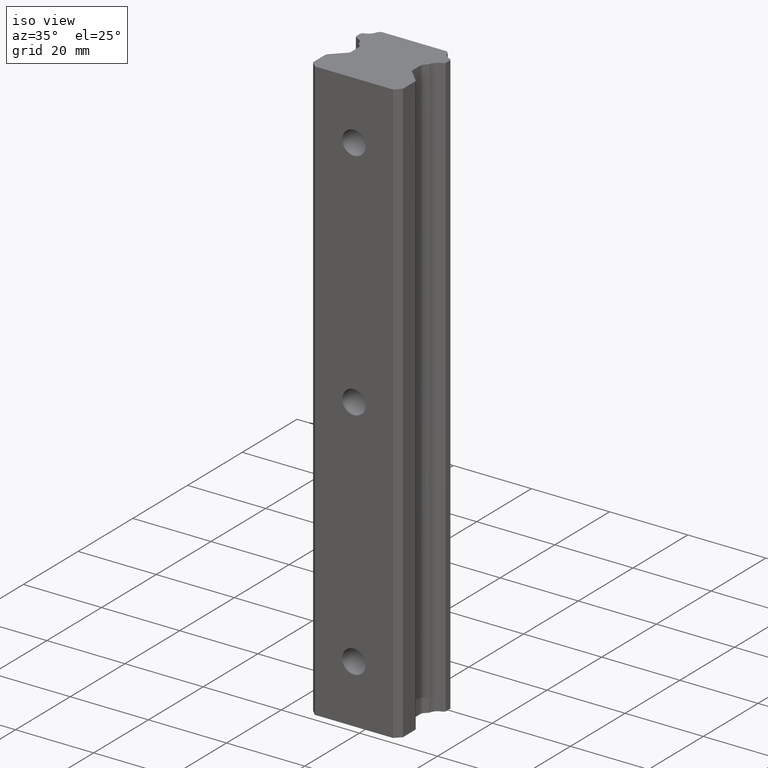
[diagram: clean part render]
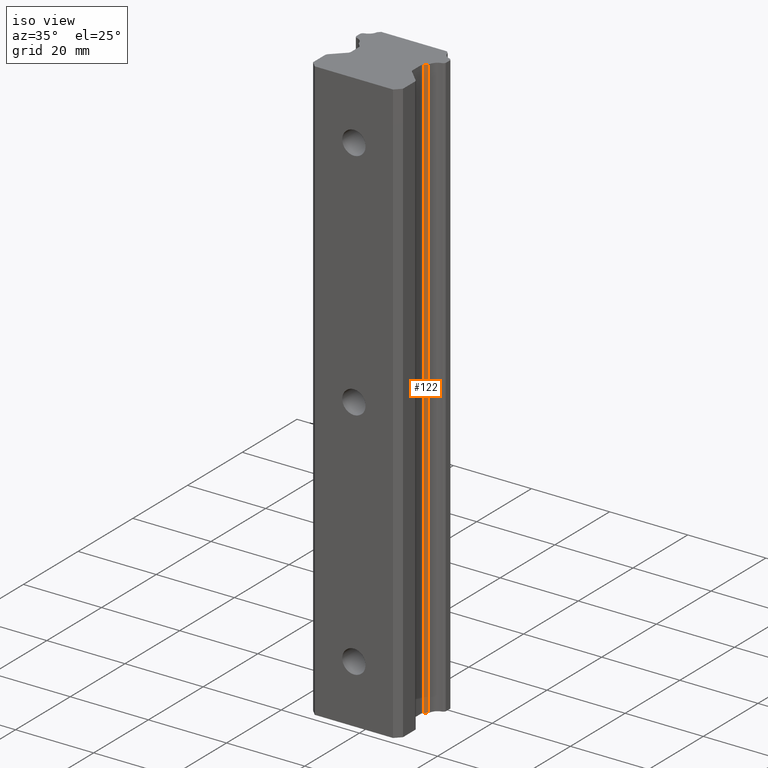
[diagram: same view with one face highlighted and labeled with its STEP entity id]
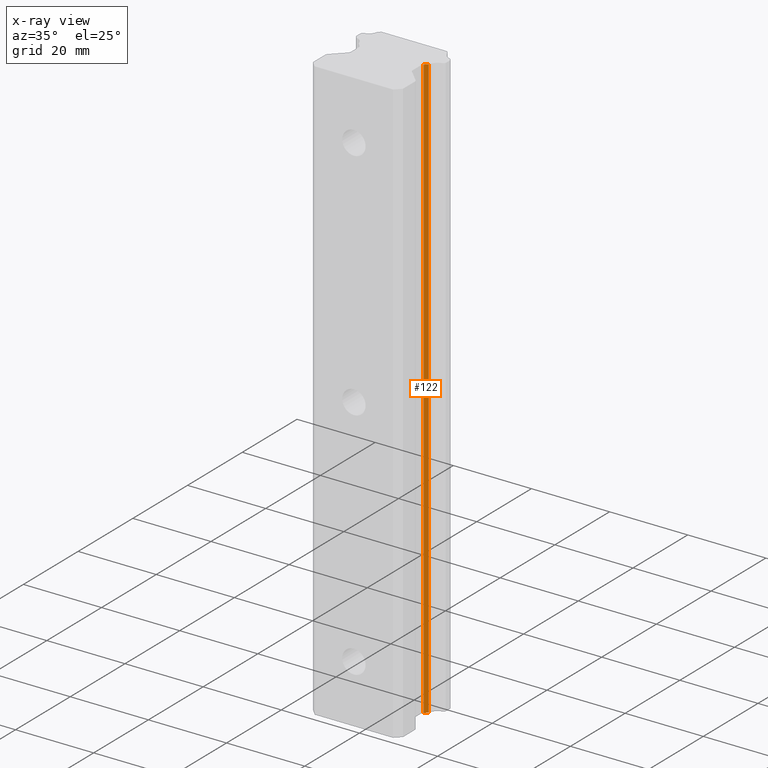
[diagram: x-ray of the same camera — body ghosted, the highlighted face saturated]
A machine part, iso view. The second image highlights one B-rep face of the part: STEP entity #122.
The next image is the same camera in x-ray: the body ghosted, the highlighted face saturated — about 0% of this face is hidden behind the body in this view.
In plain terms, the highlighted planar face has unit normal (0.7071, -0.7071, 0).
Its self-contained STEP definition (entity closure, byte-faithful):
#2 = ORIENTED_EDGE ( 'NONE', *, *, #7, .F. ) ;
#3 = ORIENTED_EDGE ( 'NONE', *, *, #117, .T. ) ;
#4 = VERTEX_POINT ( 'NONE', #607 ) ;
#7 = EDGE_CURVE ( 'NONE', #8, #183, #596, .T. ) ;
#8 = VERTEX_POINT ( 'NONE', #592 ) ;
#105 = ORIENTED_EDGE ( 'NONE', *, *, #182, .T. ) ;
#112 = ORIENTED_EDGE ( 'NONE', *, *, #180, .T. ) ;
#114 = VERTEX_POINT ( 'NONE', #776 ) ;
#117 = EDGE_CURVE ( 'NONE', #4, #183, #770, .T. ) ;
#122 = ADVANCED_FACE ( 'NONE', ( #1010 ), #1015, .T. ) ;
#123 = EDGE_LOOP ( 'NONE', ( #105, #3, #2, #112 ) ) ;
#180 = EDGE_CURVE ( 'NONE', #8, #114, #881, .T. ) ;
#182 = EDGE_CURVE ( 'NONE', #114, #4, #871, .T. ) ;
#183 = VERTEX_POINT ( 'NONE', #867 ) ;
#592 = CARTESIAN_POINT ( 'NONE',  ( 8.935156210276650400, -7.484706789724175900, 75.00000000000000000 ) ) ;
#593 = DIRECTION ( 'NONE',  ( 0.0000000000000000000, 0.0000000000000000000, -1.000000000000000000 ) ) ;
#594 = VECTOR ( 'NONE', #593, 1000.000000000000000 ) ;
#595 = CARTESIAN_POINT ( 'NONE',  ( 8.935156210275774700, -7.484706789724773700, -75.00000000000000000 ) ) ;
#596 = LINE ( 'NONE', #595, #594 ) ;
#607 = CARTESIAN_POINT ( 'NONE',  ( 8.192893218813750900, -8.226969781187202500, -75.00000000000000000 ) ) ;
#708 = VECTOR ( 'NONE', #1025, 1000.000000000000100 ) ;
#713 = CARTESIAN_POINT ( 'NONE',  ( 8.192893218813001300, -8.226969781188000000, -75.00000000000000000 ) ) ;
#770 = LINE ( 'NONE', #713, #708 ) ;
#776 = CARTESIAN_POINT ( 'NONE',  ( 8.192893218813750900, -8.226969781187202500, 75.00000000000000000 ) ) ;
#867 = CARTESIAN_POINT ( 'NONE',  ( 8.935156210276650400, -7.484706789724175900, -75.00000000000000000 ) ) ;
#868 = DIRECTION ( 'NONE',  ( 0.0000000000000000000, 0.0000000000000000000, -1.000000000000000000 ) ) ;
#869 = VECTOR ( 'NONE', #868, 1000.000000000000000 ) ;
#870 = CARTESIAN_POINT ( 'NONE',  ( 8.192893218813953400, -8.226969781186952000, -75.00000000000000000 ) ) ;
#871 = LINE ( 'NONE', #870, #869 ) ;
#878 = DIRECTION ( 'NONE',  ( -0.7071067811865975300, -0.7071067811864976100, 0.0000000000000000000 ) ) ;
#879 = VECTOR ( 'NONE', #878, 1000.000000000000100 ) ;
#880 = CARTESIAN_POINT ( 'NONE',  ( 8.192893218813001300, -8.226969781188000000, 75.00000000000000000 ) ) ;
#881 = LINE ( 'NONE', #880, #879 ) ;
#887 = DIRECTION ( 'NONE',  ( 0.7071067811865975300, 0.7071067811864976100, 0.0000000000000000000 ) ) ;
#888 = DIRECTION ( 'NONE',  ( 0.7071067811864976100, -0.7071067811865975300, 0.0000000000000000000 ) ) ;
#889 = CARTESIAN_POINT ( 'NONE',  ( 8.192893218813001300, -8.226969781188000000, -75.00000000000000000 ) ) ;
#890 = AXIS2_PLACEMENT_3D ( 'NONE', #889, #888, #887 ) ;
#1010 = FACE_OUTER_BOUND ( 'NONE', #123, .T. ) ;
#1015 = PLANE ( 'NONE',  #890 ) ;
#1025 = DIRECTION ( 'NONE',  ( 0.7071067811865975300, 0.7071067811864976100, 0.0000000000000000000 ) ) ;